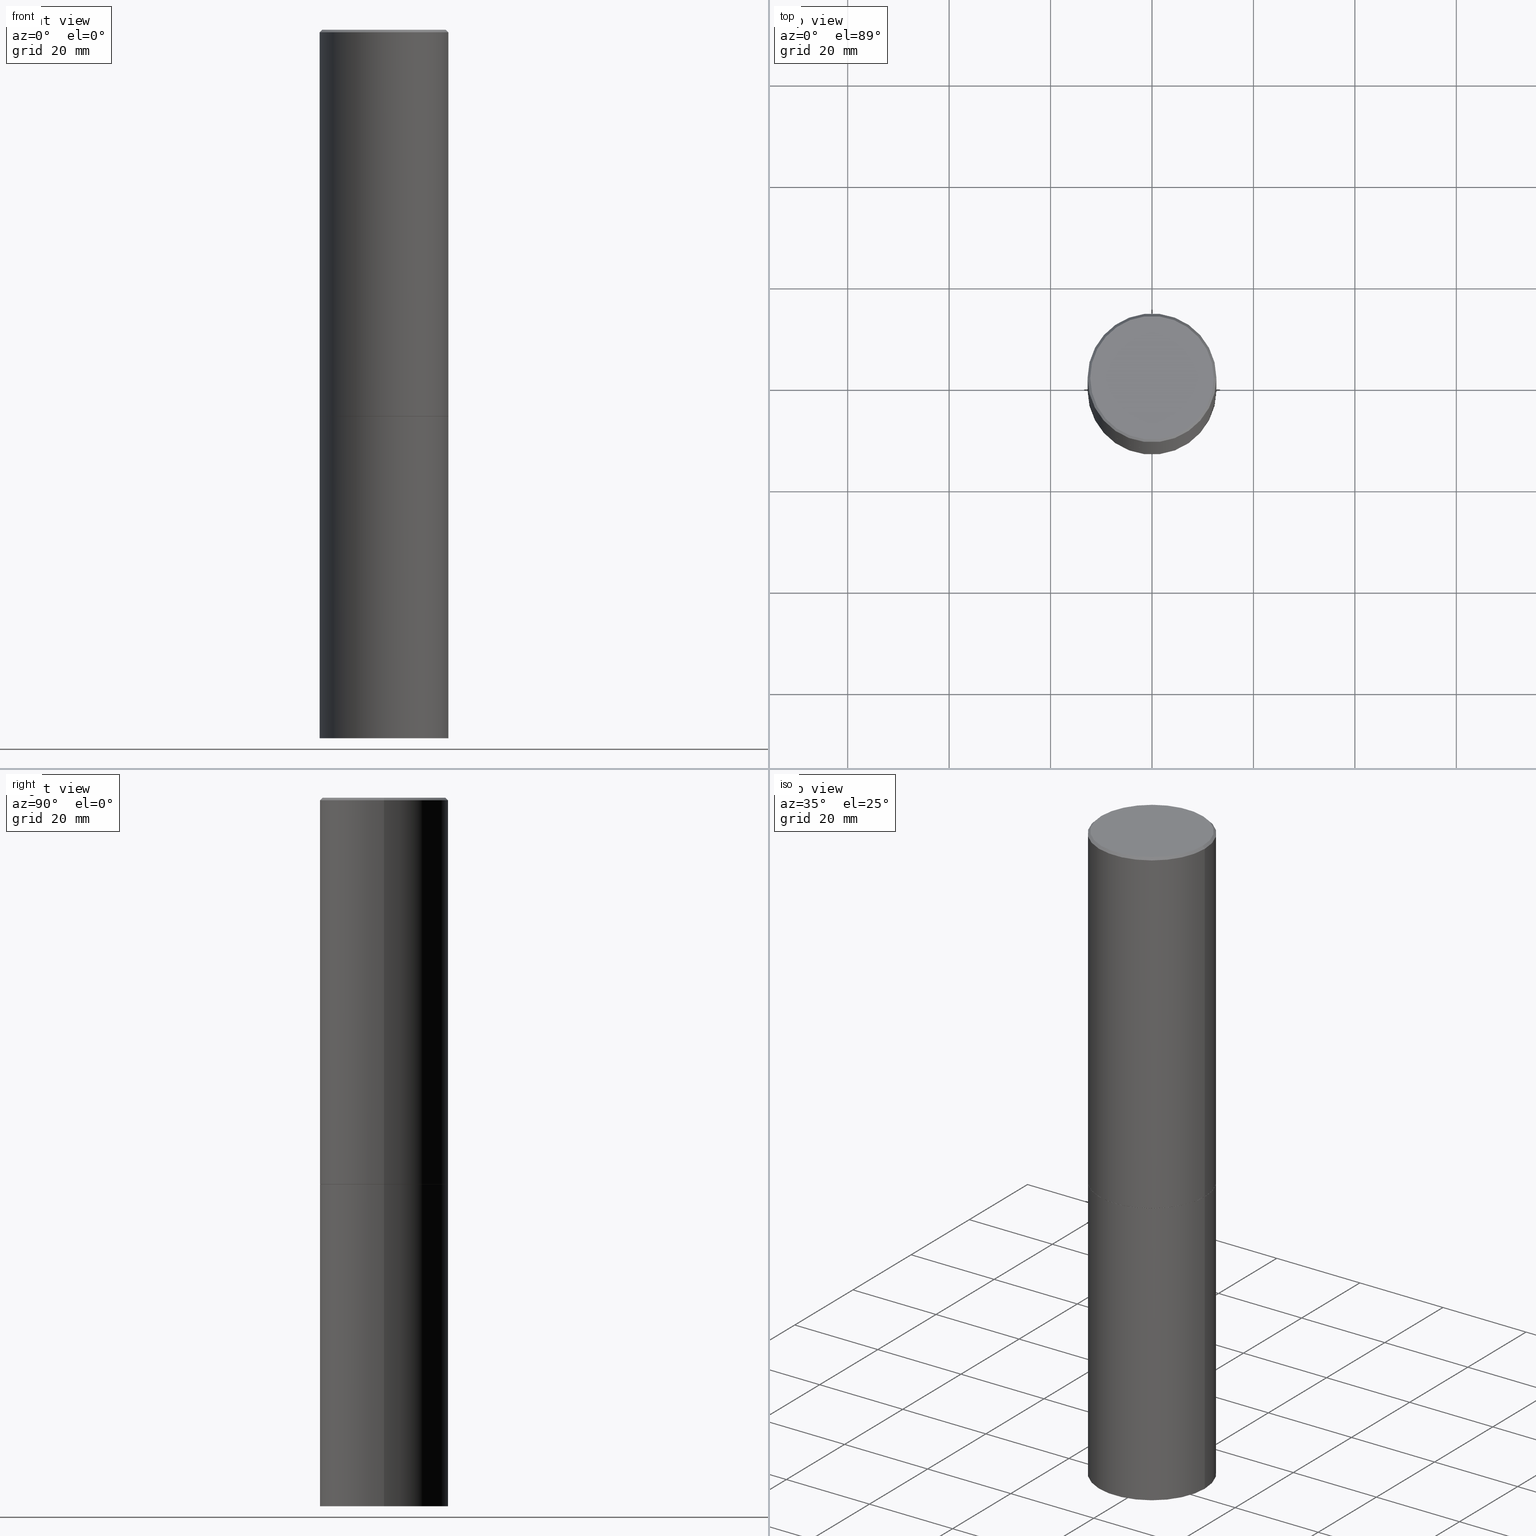
[diagram: canonical four-view strip — front | top / right | iso, engineering-drawing reading convention]
A machine part, canonical four-view strip (front | top / right | iso — engineering-drawing reading convention). The complete STEP part file that produces these views, byte-faithful:
ISO-10303-21;
HEADER;
FILE_DESCRIPTION (( 'STEP AP203' ),
    '1' );
FILE_NAME ('77295.STEP',
    '2024-02-29T18:25:06',
    ( '' ),
    ( '' ),
    'SwSTEP 2.0',
    'SolidWorks 2023',
    '' );
FILE_SCHEMA (( 'CONFIG_CONTROL_DESIGN' ));
ENDSEC;

DATA;
#1 = DIRECTION ( 'NONE',  ( 1.000000000000000000, -6.982962677686267499E-15, 4.876176775795936353E-29 ) ) ;
#2 = FACE_OUTER_BOUND ( 'NONE', #155, .T. ) ;
#3 = AXIS2_PLACEMENT_3D ( 'NONE', #91, #116, #208 ) ;
#4 = EDGE_CURVE ( 'NONE', #325, #177, #262, .T. ) ;
#5 = CARTESIAN_POINT ( 'NONE',  ( 3.491481338843206325E-15, 0.4999999999999895639, -3.000000000000001332 ) ) ;
#6 = ORIENTED_EDGE ( 'NONE', *, *, #265, .T. ) ;
#7 = CARTESIAN_POINT ( 'NONE',  ( 1.345007843401824904E-28, -1.920314736363729972E-14, -5.500000000000000000 ) ) ;
#8 = DIRECTION ( 'NONE',  ( -1.000000000000000000, 6.982962677686265922E-15, -4.876176775795935793E-29 ) ) ;
#9 = AXIS2_PLACEMENT_3D ( 'NONE', #260, #320, #10 ) ;
#10 = DIRECTION ( 'NONE',  ( 1.000000000000000000, -6.982962677686266711E-15, 4.876176775795935793E-29 ) ) ;
#11 = ORIENTED_EDGE ( 'NONE', *, *, #360, .T. ) ;
#12 = VERTEX_POINT ( 'NONE', #270 ) ;
#13 = EDGE_LOOP ( 'NONE', ( #241, #298, #129, #20 ) ) ;
#14 = CC_DESIGN_APPROVAL ( #86, ( #169 ) ) ;
#15 = CARTESIAN_POINT ( 'NONE',  ( 1.345007843401824904E-28, -1.920314736363729972E-14, -5.500000000000000000 ) ) ;
#16 = APPLICATION_PROTOCOL_DEFINITION ( 'international standard', 'config_control_design', 1994, #266 ) ;
#17 = VERTEX_POINT ( 'NONE', #273 ) ;
#18 = DATE_AND_TIME ( #271, #66 ) ;
#19 = ORIENTED_EDGE ( 'NONE', *, *, #230, .T. ) ;
#20 = ORIENTED_EDGE ( 'NONE', *, *, #305, .F. ) ;
#21 = AXIS2_PLACEMENT_3D ( 'NONE', #49, #193, #85 ) ;
#22 = CARTESIAN_POINT ( 'NONE',  ( 0.5000000000000000000, -2.269462870248043307E-14, -5.500000000000000000 ) ) ;
#23 = FACE_OUTER_BOUND ( 'NONE', #127, .T. ) ;
#24 = DIRECTION ( 'NONE',  ( -2.445468806185136597E-29, 3.491481338843145583E-15, 1.000000000000000000 ) ) ;
#25 = AXIS2_PLACEMENT_3D ( 'NONE', #345, #206, #179 ) ;
#26 = CYLINDRICAL_SURFACE ( 'NONE', #164, 0.5000000000000000000 ) ;
#27 = DIRECTION ( 'NONE',  ( -2.445468806185136597E-29, 3.491481338843145583E-15, 1.000000000000000000 ) ) ;
#28 = ORIENTED_EDGE ( 'NONE', *, *, #329, .F. ) ;
#29 = AXIS2_PLACEMENT_3D ( 'NONE', #364, #362, #225 ) ;
#30 = EDGE_CURVE ( 'NONE', #184, #130, #200, .T. ) ;
#31 = AXIS2_PLACEMENT_3D ( 'NONE', #309, #53, #170 ) ;
#32 = FACE_OUTER_BOUND ( 'NONE', #63, .T. ) ;
#33 = ORIENTED_EDGE ( 'NONE', *, *, #278, .F. ) ;
#34 = ORIENTED_EDGE ( 'NONE', *, *, #265, .F. ) ;
#35 = APPLICATION_PROTOCOL_DEFINITION ( 'international standard', 'config_control_design', 1994, #285 ) ;
#36 = FACE_OUTER_BOUND ( 'NONE', #76, .T. ) ;
#37 = EDGE_LOOP ( 'NONE', ( #150, #178 ) ) ;
#38 = PERSON_AND_ORGANIZATION ( #198, #333 ) ;
#39 = MECHANICAL_CONTEXT ( 'NONE', #285, 'mechanical' ) ;
#40 = ORIENTED_EDGE ( 'NONE', *, *, #226, .F. ) ;
#41 = CIRCLE ( 'NONE', #151, 0.5000000000000000000 ) ;
#42 = APPROVAL_STATUS ( 'not_yet_approved' ) ;
#43 = DIRECTION ( 'NONE',  ( 1.000000000000000000, -6.982962677686262766E-15, 0.000000000000000000 ) ) ;
#44 = CALENDAR_DATE ( 2024, 29, 2 ) ;
#45 = CARTESIAN_POINT ( 'NONE',  ( 7.336406418555408669E-29, -1.047444401652943478E-14, -2.999999999999999556 ) ) ;
#46 = APPROVAL_STATUS ( 'not_yet_approved' ) ;
#47 = ORIENTED_EDGE ( 'NONE', *, *, #207, .F. ) ;
#48 = ADVANCED_FACE ( 'NONE', ( #355 ), #79, .T. ) ;
#49 = CARTESIAN_POINT ( 'NONE',  ( 3.491481338843267462E-15, 0.4999999999999807931, -5.500000000000001776 ) ) ;
#50 = CC_DESIGN_APPROVAL ( #161, ( #107 ) ) ;
#51 = CARTESIAN_POINT ( 'NONE',  ( 0.4799999999999996492, -3.396558832296480127E-15, 1.280553747032483033E-17 ) ) ;
#52 = DIRECTION ( 'NONE',  ( 1.000000000000000000, -6.982962677686266711E-15, 0.000000000000000000 ) ) ;
#53 = DIRECTION ( 'NONE',  ( 2.438088387897960049E-29, -3.491481338843145188E-15, -1.000000000000000000 ) ) ;
#54 = AXIS2_PLACEMENT_3D ( 'NONE', #7, #62, #61 ) ;
#55 = ORIENTED_EDGE ( 'NONE', *, *, #305, .T. ) ;
#56 = DIRECTION ( 'NONE',  ( -2.445468806185136877E-29, 3.491481338843145188E-15, 1.000000000000000000 ) ) ;
#57 = FACE_OUTER_BOUND ( 'NONE', #356, .T. ) ;
#58 = PLANE ( 'NONE',  #158 ) ;
#59 = CIRCLE ( 'NONE', #328, 0.4799999999999996492 ) ;
#60 = CIRCLE ( 'NONE', #244, 0.4999999999999997224 ) ;
#61 = DIRECTION ( 'NONE',  ( 1.000000000000000000, -6.982962677686262766E-15, 0.000000000000000000 ) ) ;
#62 = DIRECTION ( 'NONE',  ( -2.445468806185136597E-29, 3.491481338843145583E-15, 1.000000000000000000 ) ) ;
#63 = EDGE_LOOP ( 'NONE', ( #124, #11, #92, #162 ) ) ;
#64 = LENGTH_MEASURE_WITH_UNIT ( LENGTH_MEASURE( 0.02539999999999999897 ), #205 );
#65 = AXIS2_PLACEMENT_3D ( 'NONE', #277, #24, #52 ) ;
#66 = LOCAL_TIME ( 13, 25, 6.000000000000000000, #185 ) ;
#67 = PERSON_AND_ORGANIZATION ( #198, #333 ) ;
#68 = DIRECTION ( 'NONE',  ( -2.445468806185136877E-29, 3.491481338843145188E-15, 1.000000000000000000 ) ) ;
#69 = ADVANCED_FACE ( 'NONE', ( #359 ), #103, .T. ) ;
#70 = CALENDAR_DATE ( 2024, 29, 2 ) ;
#71 = ORIENTED_EDGE ( 'NONE', *, *, #82, .F. ) ;
#72 = PERSON_AND_ORGANIZATION_ROLE ( 'classification_officer' ) ;
#73 = ORIENTED_EDGE ( 'NONE', *, *, #278, .T. ) ;
#74 = LOCAL_TIME ( 13, 25, 6.000000000000000000, #209 ) ;
#75 = DIRECTION ( 'NONE',  ( 2.445468806185136597E-29, -3.491481338843145583E-15, -1.000000000000000000 ) ) ;
#76 = EDGE_LOOP ( 'NONE', ( #160, #55 ) ) ;
#77 = PRODUCT_RELATED_PRODUCT_CATEGORY ( 'detail', '', ( #190 ) ) ;
#78 = CYLINDRICAL_SURFACE ( 'NONE', #289, 0.4999999999999998335 ) ;
#79 = CONICAL_SURFACE ( 'NONE', #321, 0.4999999999999997224, 0.7853981633974463916 ) ;
#80 = CARTESIAN_POINT ( 'NONE',  ( -0.4999999999999997224, 3.421651712066268085E-15, -0.02000000000000012879 ) ) ;
#81 = AXIS2_PLACEMENT_3D ( 'NONE', #87, #203, #149 ) ;
#82 = EDGE_CURVE ( 'NONE', #288, #130, #249, .T. ) ;
#83 = CARTESIAN_POINT ( 'NONE',  ( 0.000000000000000000, 0.000000000000000000, 0.000000000000000000 ) ) ;
#84 = FACE_OUTER_BOUND ( 'NONE', #37, .T. ) ;
#85 = DIRECTION ( 'NONE',  ( -1.000000000000000000, 6.982962677686265922E-15, -4.876176775795935793E-29 ) ) ;
#86 = APPROVAL ( #353, 'UNSPECIFIED' ) ;
#87 = CARTESIAN_POINT ( 'NONE',  ( 7.336406418555408669E-29, -1.047444401652943478E-14, -2.999999999999999556 ) ) ;
#88 = CYLINDRICAL_SURFACE ( 'NONE', #9, 0.5000000000000000000 ) ;
#89 = VECTOR ( 'NONE', #120, 39.37007874015748143 ) ;
#90 = DIRECTION ( 'NONE',  ( 1.000000000000000000, -6.982962677686266711E-15, 0.000000000000000000 ) ) ;
#91 = CARTESIAN_POINT ( 'NONE',  ( 7.336406418555408669E-29, -1.047444401652943478E-14, -2.999999999999999556 ) ) ;
#92 = ORIENTED_EDGE ( 'NONE', *, *, #319, .T. ) ;
#93 = ADVANCED_FACE ( 'NONE', ( #229 ), #310, .T. ) ;
#94 = DIRECTION ( 'NONE',  ( 0.000000000000000000, 0.000000000000000000, 1.000000000000000000 ) ) ;
#95 = VERTEX_POINT ( 'NONE', #304 ) ;
#96 = AXIS2_PLACEMENT_3D ( 'NONE', #45, #323, #275 ) ;
#97 = VECTOR ( 'NONE', #56, 39.37007874015748143 ) ;
#98 = PERSON_AND_ORGANIZATION ( #198, #333 ) ;
#99 = ORIENTED_EDGE ( 'NONE', *, *, #30, .F. ) ;
#100 = APPROVAL_DATE_TIME ( #322, #239 ) ;
#101 = SHAPE_DEFINITION_REPRESENTATION ( #358, #348 ) ;
#102 = ORIENTED_EDGE ( 'NONE', *, *, #297, .T. ) ;
#103 = CONICAL_SURFACE ( 'NONE', #96, 0.4989999999999999991, 0.7853981633978239785 ) ;
#104 = LOCAL_TIME ( 13, 25, 6.000000000000000000, #156 ) ;
#105 = DATE_AND_TIME ( #248, #254 ) ;
#106 = CARTESIAN_POINT ( 'NONE',  ( -0.4999999999999998335, 3.552713678800499746E-15, -2.459467545127452330E-29 ) ) ;
#107 = PRODUCT_DEFINITION ( 'UNKNOWN', '', #341, #235 ) ;
#108 = PLANE ( 'NONE',  #21 ) ;
#109 = DIRECTION ( 'NONE',  ( 1.000000000000000000, -6.982962677686267499E-15, 4.876176775795936353E-29 ) ) ;
#110 = DIRECTION ( 'NONE',  ( 1.000000000000000000, -6.982962677686267499E-15, 4.876036955247132767E-29 ) ) ;
#111 = CARTESIAN_POINT ( 'NONE',  ( 0.4999999999999997224, -3.500078625662627502E-15, -0.02000000000000012879 ) ) ;
#112 = DIRECTION ( 'NONE',  ( -2.445468806185136877E-29, 3.491481338843145188E-15, 1.000000000000000000 ) ) ;
#113 = CARTESIAN_POINT ( 'NONE',  ( 0.4989999999999999991, -1.395894239269488369E-14, -2.999999999999999556 ) ) ;
#114 = DIRECTION ( 'NONE',  ( 1.000000000000000000, -6.982962677686265922E-15, 4.876176775795935793E-29 ) ) ;
#115 = ORIENTED_EDGE ( 'NONE', *, *, #268, .F. ) ;
#116 = DIRECTION ( 'NONE',  ( -2.445468806185136597E-29, 3.491481338843145583E-15, 1.000000000000000000 ) ) ;
#117 = MANIFOLD_SOLID_BREP ( 'Body-Move/Copy2[2]', #174 ) ;
#118 = DIRECTION ( 'NONE',  ( 1.000000000000000000, -6.982962677686266711E-15, 0.000000000000000000 ) ) ;
#119 = AXIS2_PLACEMENT_3D ( 'NONE', #253, #361, #286 ) ;
#120 = DIRECTION ( 'NONE',  ( -2.445468806185136877E-29, 3.491481338843145188E-15, 1.000000000000000000 ) ) ;
#121 = ADVANCED_FACE ( 'NONE', ( #167 ), #222, .T. ) ;
#122 = MANIFOLD_SOLID_BREP ( 'Body-Move/Copy2[1]', #168 ) ;
#123 = PERSON_AND_ORGANIZATION ( #198, #333 ) ;
#124 = ORIENTED_EDGE ( 'NONE', *, *, #230, .F. ) ;
#125 = PERSON_AND_ORGANIZATION_ROLE ( 'design_supplier' ) ;
#126 = APPROVAL_DATE_TIME ( #105, #161 ) ;
#127 = EDGE_LOOP ( 'NONE', ( #73, #351, #99, #34 ) ) ;
#128 = PERSON_AND_ORGANIZATION_ROLE ( 'creator' ) ;
#129 = ORIENTED_EDGE ( 'NONE', *, *, #268, .T. ) ;
#130 = VERTEX_POINT ( 'NONE', #80 ) ;
#131 = CC_DESIGN_PERSON_AND_ORGANIZATION_ASSIGNMENT ( #326, #72, ( #169 ) ) ;
#132 = CIRCLE ( 'NONE', #54, 0.5000000000000000000 ) ;
#133 = DIRECTION ( 'NONE',  ( -2.445468806185136597E-29, 3.491481338843145583E-15, 1.000000000000000000 ) ) ;
#134 = CARTESIAN_POINT ( 'NONE',  ( -3.131554243005659264E-46, 4.471029511141341874E-32, 1.280553747030123384E-17 ) ) ;
#135 = VERTEX_POINT ( 'NONE', #51 ) ;
#136 = CC_DESIGN_PERSON_AND_ORGANIZATION_ASSIGNMENT ( #245, #128, ( #107 ) ) ;
#137 = CARTESIAN_POINT ( 'NONE',  ( -0.4799999999999996492, 3.386736898677836830E-15, 1.280553747027767124E-17 ) ) ;
#138 = CIRCLE ( 'NONE', #350, 0.4799999999999996492 ) ;
#139 = DIRECTION ( 'NONE',  ( 1.000000000000000000, -6.982962677686267499E-15, 4.876036955247132767E-29 ) ) ;
#140 = FACE_OUTER_BOUND ( 'NONE', #13, .T. ) ;
#141 = EDGE_CURVE ( 'NONE', #288, #17, #294, .T. ) ;
#142 = DIRECTION ( 'NONE',  ( 1.000000000000000000, -6.982962677686266711E-15, 4.876176775795935793E-29 ) ) ;
#143 = CARTESIAN_POINT ( 'NONE',  ( -0.4989999999999999991, -6.923537310738314819E-15, -2.999999999999999556 ) ) ;
#144 = ORIENTED_EDGE ( 'NONE', *, *, #141, .T. ) ;
#145 = ADVANCED_FACE ( 'NONE', ( #140 ), #26, .T. ) ;
#146 = CARTESIAN_POINT ( 'NONE',  ( 4.890937612370304688E-31, -6.982962677686335982E-17, -0.02000000000000012879 ) ) ;
#147 = CARTESIAN_POINT ( 'NONE',  ( 0.5000000000000000000, -1.396592535537256813E-14, -2.999999999999999556 ) ) ;
#148 = ORIENTED_EDGE ( 'NONE', *, *, #30, .T. ) ;
#149 = DIRECTION ( 'NONE',  ( 1.000000000000000000, -6.982962677686266711E-15, 0.000000000000000000 ) ) ;
#150 = ORIENTED_EDGE ( 'NONE', *, *, #228, .T. ) ;
#151 = AXIS2_PLACEMENT_3D ( 'NONE', #171, #27, #263 ) ;
#152 = DIRECTION ( 'NONE',  ( 2.438088387897960049E-29, -3.491481338843145188E-15, -1.000000000000000000 ) ) ;
#153 = CC_DESIGN_DATE_AND_TIME_ASSIGNMENT ( #154, #181, ( #107 ) ) ;
#154 = DATE_AND_TIME ( #70, #180 ) ;
#155 = EDGE_LOOP ( 'NONE', ( #366, #272, #28, #115 ) ) ;
#156 = COORDINATED_UNIVERSAL_TIME_OFFSET ( 5, 0, .BEHIND. ) ;
#157 = EDGE_LOOP ( 'NONE', ( #71, #144, #6, #250 ) ) ;
#158 = AXIS2_PLACEMENT_3D ( 'NONE', #175, #287, #114 ) ;
#159 = APPROVAL_ROLE ( '' ) ;
#160 = ORIENTED_EDGE ( 'NONE', *, *, #329, .T. ) ;
#161 = APPROVAL ( #42, 'UNSPECIFIED' ) ;
#162 = ORIENTED_EDGE ( 'NONE', *, *, #141, .F. ) ;
#163 = ORIENTED_EDGE ( 'NONE', *, *, #228, .F. ) ;
#164 = AXIS2_PLACEMENT_3D ( 'NONE', #166, #195, #142 ) ;
#165 = DIRECTION ( 'NONE',  ( 0.7071067811865461294, -7.319954787623251312E-15, -0.7071067811865489050 ) ) ;
#166 = CARTESIAN_POINT ( 'NONE',  ( 0.000000000000000000, 0.000000000000000000, 0.000000000000000000 ) ) ;
#167 = FACE_OUTER_BOUND ( 'NONE', #157, .T. ) ;
#168 = CLOSED_SHELL ( 'NONE', ( #284, #214, #315, #145 ) ) ;
#169 = SECURITY_CLASSIFICATION ( '', '', #274 ) ;
#170 = DIRECTION ( 'NONE',  ( -1.000000000000000000, 6.982962677686265922E-15, -4.876176775795935793E-29 ) ) ;
#171 = CARTESIAN_POINT ( 'NONE',  ( 7.333960949749226429E-29, -1.047095253519059492E-14, -2.999000000000000554 ) ) ;
#172 = DIRECTION ( 'NONE',  ( -2.445468806185136597E-29, 3.491481338843145583E-15, 1.000000000000000000 ) ) ;
#173 = ADVANCED_FACE ( 'NONE', ( #23 ), #78, .T. ) ;
#174 = CLOSED_SHELL ( 'NONE', ( #69, #173, #93, #48, #121, #365, #332, #252 ) ) ;
#175 = CARTESIAN_POINT ( 'NONE',  ( 7.336406418555408669E-29, -1.047444401652943478E-14, -2.999999999999999556 ) ) ;
#176 = CIRCLE ( 'NONE', #258, 0.5000000000000000000 ) ;
#177 = VERTEX_POINT ( 'NONE', #22 ) ;
#178 = ORIENTED_EDGE ( 'NONE', *, *, #204, .T. ) ;
#179 = DIRECTION ( 'NONE',  ( 1.000000000000000000, -6.982962677686269077E-15, 0.000000000000000000 ) ) ;
#180 = LOCAL_TIME ( 13, 25, 6.000000000000000000, #212 ) ;
#181 = DATE_TIME_ROLE ( 'creation_date' ) ;
#182 = ORIENTED_EDGE ( 'NONE', *, *, #4, .F. ) ;
#183 = DIRECTION ( 'NONE',  ( 1.000000000000000000, 0.000000000000000000, 0.000000000000000000 ) ) ;
#184 = VERTEX_POINT ( 'NONE', #111 ) ;
#185 = COORDINATED_UNIVERSAL_TIME_OFFSET ( 5, 0, .BEHIND. ) ;
#186 = EDGE_LOOP ( 'NONE', ( #40, #163, #318, #102 ) ) ;
#187 = CC_DESIGN_APPROVAL ( #239, ( #341 ) ) ;
#188 = CC_DESIGN_PERSON_AND_ORGANIZATION_ASSIGNMENT ( #67, #125, ( #341 ) ) ;
#189 = DIRECTION ( 'NONE',  ( -1.000000000000000000, 6.982962677686266711E-15, 0.000000000000000000 ) ) ;
#190 = PRODUCT ( '77295', '77295', '', ( #39 ) ) ;
#191 = DATE_TIME_ROLE ( 'classification_date' ) ;
#192 = ORIENTED_EDGE ( 'NONE', *, *, #194, .F. ) ;
#193 = DIRECTION ( 'NONE',  ( 2.438088387897960049E-29, -3.491481338843145188E-15, -1.000000000000000000 ) ) ;
#194 = EDGE_CURVE ( 'NONE', #12, #301, #306, .T. ) ;
#195 = DIRECTION ( 'NONE',  ( -2.445468806185136597E-29, 3.491481338843145583E-15, 1.000000000000000000 ) ) ;
#196 = DIRECTION ( 'NONE',  ( -0.7071067811865461294, 2.468850131082242072E-15, -0.7071067811865489050 ) ) ;
#197 = LINE ( 'NONE', #336, #282 ) ;
#198 = PERSON ( 'UNSPECIFIED', 'UNSPECIFIED', 'UNSPECIFIED', ('UNSPECIFIED'), ('UNSPECIFIED'), ('UNSPECIFIED') ) ;
#199 = CC_DESIGN_PERSON_AND_ORGANIZATION_ASSIGNMENT ( #296, #269, ( #341 ) ) ;
#200 = CIRCLE ( 'NONE', #236, 0.4999999999999997224 ) ;
#201 = VECTOR ( 'NONE', #165, 39.37007874015748143 ) ;
#202 = LINE ( 'NONE', #255, #201 ) ;
#203 = DIRECTION ( 'NONE',  ( -2.445468806185136597E-29, 3.491481338843145583E-15, 1.000000000000000000 ) ) ;
#204 = EDGE_CURVE ( 'NONE', #135, #213, #138, .T. ) ;
#205 =( LENGTH_UNIT ( ) NAMED_UNIT ( * ) SI_UNIT ( $, .METRE. ) );
#206 = DIRECTION ( 'NONE',  ( -2.445468806185136597E-29, 3.491481338843145583E-15, 1.000000000000000000 ) ) ;
#207 = EDGE_CURVE ( 'NONE', #213, #130, #197, .T. ) ;
#208 = DIRECTION ( 'NONE',  ( 1.000000000000000000, -6.982962677686269077E-15, 0.000000000000000000 ) ) ;
#209 = COORDINATED_UNIVERSAL_TIME_OFFSET ( 5, 0, .BEHIND. ) ;
#210 = ORIENTED_EDGE ( 'NONE', *, *, #204, .F. ) ;
#211 = CC_DESIGN_SECURITY_CLASSIFICATION ( #169, ( #341 ) ) ;
#212 = COORDINATED_UNIVERSAL_TIME_OFFSET ( 5, 0, .BEHIND. ) ;
#213 = VERTEX_POINT ( 'NONE', #137 ) ;
#214 = ADVANCED_FACE ( 'NONE', ( #251 ), #108, .T. ) ;
#215 = ORIENTED_EDGE ( 'NONE', *, *, #319, .F. ) ;
#216 = COORDINATED_UNIVERSAL_TIME_OFFSET ( 5, 0, .BEHIND. ) ;
#217 = CARTESIAN_POINT ( 'NONE',  ( 4.890937612370304688E-31, -6.982962677686335982E-17, -0.02000000000000012879 ) ) ;
#218 = APPROVAL_PERSON_ORGANIZATION ( #38, #161, #159 ) ;
#219 = DIRECTION ( 'NONE',  ( 1.000000000000000000, -6.982962677686266711E-15, 0.000000000000000000 ) ) ;
#220 = CC_DESIGN_PERSON_AND_ORGANIZATION_ASSIGNMENT ( #354, #240, ( #190 ) ) ;
#221 = LINE ( 'NONE', #283, #300 ) ;
#222 = CYLINDRICAL_SURFACE ( 'NONE', #243, 0.4999999999999998335 ) ;
#223 = CIRCLE ( 'NONE', #81, 0.5000000000000000000 ) ;
#224 = VECTOR ( 'NONE', #335, 39.37007874015748854 ) ;
#225 = DIRECTION ( 'NONE',  ( -1.000000000000000000, 6.982962677686266711E-15, 0.000000000000000000 ) ) ;
#226 = EDGE_CURVE ( 'NONE', #135, #184, #202, .T. ) ;
#227 = DIRECTION ( 'NONE',  ( -2.445468806185136597E-29, 3.491481338843145583E-15, 1.000000000000000000 ) ) ;
#228 = EDGE_CURVE ( 'NONE', #213, #135, #59, .T. ) ;
#229 = FACE_OUTER_BOUND ( 'NONE', #259, .T. ) ;
#230 = EDGE_CURVE ( 'NONE', #301, #288, #334, .T. ) ;
#231 = VECTOR ( 'NONE', #313, 39.37007874015748854 ) ;
#232 = CARTESIAN_POINT ( 'NONE',  ( 7.336406418555408669E-29, -1.047444401652943478E-14, -2.999999999999999556 ) ) ;
#233 = ORIENTED_EDGE ( 'NONE', *, *, #226, .T. ) ;
#234 =( NAMED_UNIT ( * ) PLANE_ANGLE_UNIT ( ) SI_UNIT ( $, .RADIAN. ) );
#235 = DESIGN_CONTEXT ( 'detailed design', #266, 'design' ) ;
#236 = AXIS2_PLACEMENT_3D ( 'NONE', #217, #133, #219 ) ;
#237 = AXIS2_PLACEMENT_3D ( 'NONE', #5, #152, #8 ) ;
#238 = CARTESIAN_POINT ( 'NONE',  ( -0.5000000000000000000, -1.128608201128286632E-14, -5.500000000000000000 ) ) ;
#239 = APPROVAL ( #46, 'UNSPECIFIED' ) ;
#240 = PERSON_AND_ORGANIZATION_ROLE ( 'design_owner' ) ;
#241 = ORIENTED_EDGE ( 'NONE', *, *, #339, .F. ) ;
#242 = CALENDAR_DATE ( 2024, 29, 2 ) ;
#243 = AXIS2_PLACEMENT_3D ( 'NONE', #331, #280, #109 ) ;
#244 = AXIS2_PLACEMENT_3D ( 'NONE', #146, #340, #90 ) ;
#245 = PERSON_AND_ORGANIZATION ( #198, #333 ) ;
#246 = ORIENTED_EDGE ( 'NONE', *, *, #360, .F. ) ;
#247 = CARTESIAN_POINT ( 'NONE',  ( 0.000000000000000000, 0.000000000000000000, 0.000000000000000000 ) ) ;
#248 = CALENDAR_DATE ( 2024, 29, 2 ) ;
#249 = LINE ( 'NONE', #106, #281 ) ;
#250 = ORIENTED_EDGE ( 'NONE', *, *, #297, .F. ) ;
#251 = FACE_OUTER_BOUND ( 'NONE', #267, .T. ) ;
#252 = ADVANCED_FACE ( 'NONE', ( #84 ), #257, .F. ) ;
#253 = CARTESIAN_POINT ( 'NONE',  ( 7.336406418555408669E-29, -1.047444401652943478E-14, -2.999999999999999556 ) ) ;
#254 = LOCAL_TIME ( 13, 25, 6.000000000000000000, #216 ) ;
#255 = CARTESIAN_POINT ( 'NONE',  ( 0.4999999999999997224, -3.500078625662627502E-15, -0.02000000000000012879 ) ) ;
#256 = DIRECTION ( 'NONE',  ( -2.445468806185136597E-29, 3.491481338843145583E-15, 1.000000000000000000 ) ) ;
#257 = PLANE ( 'NONE',  #31 ) ;
#258 = AXIS2_PLACEMENT_3D ( 'NONE', #232, #172, #118 ) ;
#259 = EDGE_LOOP ( 'NONE', ( #210, #233, #148, #47 ) ) ;
#260 = CARTESIAN_POINT ( 'NONE',  ( 0.000000000000000000, 0.000000000000000000, 0.000000000000000000 ) ) ;
#261 = UNCERTAINTY_MEASURE_WITH_UNIT (LENGTH_MEASURE( 1.000000000000000082E-05 ), #338, 'distance_accuracy_value', 'NONE');
#262 = CIRCLE ( 'NONE', #363, 0.5000000000000000000 ) ;
#263 = DIRECTION ( 'NONE',  ( 1.000000000000000000, -6.982962677686266711E-15, 0.000000000000000000 ) ) ;
#264 =( GEOMETRIC_REPRESENTATION_CONTEXT ( 3 ) GLOBAL_UNCERTAINTY_ASSIGNED_CONTEXT ( ( #261 ) ) GLOBAL_UNIT_ASSIGNED_CONTEXT ( ( #338, #234, #292 ) ) REPRESENTATION_CONTEXT ( 'NONE', 'WORKASPACE' ) );
#265 = EDGE_CURVE ( 'NONE', #17, #184, #221, .T. ) ;
#266 = APPLICATION_CONTEXT ( 'configuration controlled 3d designs of mechanical parts and assemblies' ) ;
#267 = EDGE_LOOP ( 'NONE', ( #276, #182 ) ) ;
#268 = EDGE_CURVE ( 'NONE', #177, #303, #330, .T. ) ;
#269 = PERSON_AND_ORGANIZATION_ROLE ( 'creator' ) ;
#270 = CARTESIAN_POINT ( 'NONE',  ( 0.4989999999999999991, -1.395894239269488369E-14, -2.999999999999999556 ) ) ;
#271 = CALENDAR_DATE ( 2024, 29, 2 ) ;
#272 = ORIENTED_EDGE ( 'NONE', *, *, #339, .T. ) ;
#273 = CARTESIAN_POINT ( 'NONE',  ( 0.5000000000000000000, -1.396243387403372828E-14, -2.999000000000000554 ) ) ;
#274 = SECURITY_CLASSIFICATION_LEVEL ( 'unclassified' ) ;
#275 = DIRECTION ( 'NONE',  ( 1.000000000000000000, -6.982962677686269077E-15, 0.000000000000000000 ) ) ;
#276 = ORIENTED_EDGE ( 'NONE', *, *, #344, .F. ) ;
#277 = CARTESIAN_POINT ( 'NONE',  ( 7.333960949749226429E-29, -1.047095253519059492E-14, -2.999000000000000554 ) ) ;
#278 = EDGE_CURVE ( 'NONE', #17, #288, #41, .T. ) ;
#279 = DIRECTION ( 'NONE',  ( -2.445468806185136597E-29, 3.491481338843145583E-15, 1.000000000000000000 ) ) ;
#280 = DIRECTION ( 'NONE',  ( -2.445468806185136597E-29, 3.491481338843145583E-15, 1.000000000000000000 ) ) ;
#281 = VECTOR ( 'NONE', #68, 39.37007874015748143 ) ;
#282 = VECTOR ( 'NONE', #196, 39.37007874015748143 ) ;
#283 = CARTESIAN_POINT ( 'NONE',  ( 0.4999999999999998335, -3.491481338843132566E-15, 2.438088387897967336E-29 ) ) ;
#284 = ADVANCED_FACE ( 'NONE', ( #2 ), #88, .T. ) ;
#285 = APPLICATION_CONTEXT ( 'configuration controlled 3d designs of mechanical parts and assemblies' ) ;
#286 = DIRECTION ( 'NONE',  ( 1.000000000000000000, -6.982962677686269077E-15, 0.000000000000000000 ) ) ;
#287 = DIRECTION ( 'NONE',  ( -2.438088387897960049E-29, 3.491481338843145188E-15, 1.000000000000000000 ) ) ;
#288 = VERTEX_POINT ( 'NONE', #337 ) ;
#289 = AXIS2_PLACEMENT_3D ( 'NONE', #83, #256, #1 ) ;
#290 = AXIS2_PLACEMENT_3D ( 'NONE', #247, #94, #183 ) ;
#291 = LINE ( 'NONE', #113, #231 ) ;
#292 =( NAMED_UNIT ( * ) SI_UNIT ( $, .STERADIAN. ) SOLID_ANGLE_UNIT ( ) );
#293 = ORIENTED_EDGE ( 'NONE', *, *, #194, .T. ) ;
#294 = CIRCLE ( 'NONE', #65, 0.5000000000000000000 ) ;
#295 = APPROVAL_PERSON_ORGANIZATION ( #123, #239, #347 ) ;
#296 = PERSON_AND_ORGANIZATION ( #198, #333 ) ;
#297 = EDGE_CURVE ( 'NONE', #130, #184, #60, .T. ) ;
#298 = ORIENTED_EDGE ( 'NONE', *, *, #4, .T. ) ;
#299 = DIRECTION ( 'NONE',  ( -2.445468806185136597E-29, 3.491481338843145583E-15, 1.000000000000000000 ) ) ;
#300 = VECTOR ( 'NONE', #112, 39.37007874015748143 ) ;
#301 = VERTEX_POINT ( 'NONE', #143 ) ;
#302 = APPROVAL_ROLE ( '' ) ;
#303 = VERTEX_POINT ( 'NONE', #147 ) ;
#304 = CARTESIAN_POINT ( 'NONE',  ( -0.5000000000000000000, -1.128608201128286632E-14, -2.999999999999999556 ) ) ;
#305 = EDGE_CURVE ( 'NONE', #95, #303, #223, .T. ) ;
#306 = CIRCLE ( 'NONE', #119, 0.4989999999999999991 ) ;
#307 = CARTESIAN_POINT ( 'NONE',  ( -3.131554243005659264E-46, 4.471029511141341874E-32, 1.280553747030123384E-17 ) ) ;
#308 = CARTESIAN_POINT ( 'NONE',  ( -0.4989999999999999991, -6.928835765086534855E-15, -2.999999999999999556 ) ) ;
#309 = CARTESIAN_POINT ( 'NONE',  ( 3.351822085289405181E-15, 0.4799999999999996492, -1.669508273909558064E-15 ) ) ;
#310 = CONICAL_SURFACE ( 'NONE', #29, 0.4999999999999997224, 0.7853981633974463916 ) ;
#311 = APPROVAL_PERSON_ORGANIZATION ( #98, #86, #302 ) ;
#312 = CARTESIAN_POINT ( 'NONE',  ( 0.5000000000000000000, -3.491481338843133355E-15, 2.438088387897967896E-29 ) ) ;
#313 = DIRECTION ( 'NONE',  ( 0.7071067811868130271, -2.468850131085038979E-15, 0.7071067811862817853 ) ) ;
#314 = PLANE ( 'NONE',  #237 ) ;
#315 = ADVANCED_FACE ( 'NONE', ( #36 ), #314, .F. ) ;
#316 = CIRCLE ( 'NONE', #25, 0.4989999999999999991 ) ;
#317 = LINE ( 'NONE', #342, #89 ) ;
#318 = ORIENTED_EDGE ( 'NONE', *, *, #207, .T. ) ;
#319 = EDGE_CURVE ( 'NONE', #12, #17, #291, .T. ) ;
#320 = DIRECTION ( 'NONE',  ( -2.445468806185136597E-29, 3.491481338843145583E-15, 1.000000000000000000 ) ) ;
#321 = AXIS2_PLACEMENT_3D ( 'NONE', #327, #75, #189 ) ;
#322 = DATE_AND_TIME ( #44, #74 ) ;
#323 = DIRECTION ( 'NONE',  ( -2.445468806185136597E-29, 3.491481338843145583E-15, 1.000000000000000000 ) ) ;
#324 = APPROVAL_DATE_TIME ( #18, #86 ) ;
#325 = VERTEX_POINT ( 'NONE', #238 ) ;
#326 = PERSON_AND_ORGANIZATION ( #198, #333 ) ;
#327 = CARTESIAN_POINT ( 'NONE',  ( 4.890937612370304688E-31, -6.982962677686335982E-17, -0.02000000000000012879 ) ) ;
#328 = AXIS2_PLACEMENT_3D ( 'NONE', #307, #227, #110 ) ;
#329 = EDGE_CURVE ( 'NONE', #303, #95, #176, .T. ) ;
#330 = LINE ( 'NONE', #312, #97 ) ;
#331 = CARTESIAN_POINT ( 'NONE',  ( 0.000000000000000000, 0.000000000000000000, 0.000000000000000000 ) ) ;
#332 = ADVANCED_FACE ( 'NONE', ( #57 ), #58, .F. ) ;
#333 = ORGANIZATION ( 'UNSPECIFIED', 'UNSPECIFIED', '' ) ;
#334 = LINE ( 'NONE', #308, #224 ) ;
#335 = DIRECTION ( 'NONE',  ( -0.7071067811868130271, 7.493145998871311837E-15, 0.7071067811862817853 ) ) ;
#336 = CARTESIAN_POINT ( 'NONE',  ( -0.4999999999999997224, 3.421651712066268085E-15, -0.02000000000000012879 ) ) ;
#337 = CARTESIAN_POINT ( 'NONE',  ( -0.5000000000000000000, -1.717677402183226998E-15, -2.999000000000000554 ) ) ;
#338 =( CONVERSION_BASED_UNIT ( 'INCH', #64 ) LENGTH_UNIT ( ) NAMED_UNIT ( #352 ) );
#339 = EDGE_CURVE ( 'NONE', #325, #95, #317, .T. ) ;
#340 = DIRECTION ( 'NONE',  ( -2.445468806185136597E-29, 3.491481338843145583E-15, 1.000000000000000000 ) ) ;
#341 = PRODUCT_DEFINITION_FORMATION_WITH_SPECIFIED_SOURCE ( 'ANY', '', #190, .NOT_KNOWN. ) ;
#342 = CARTESIAN_POINT ( 'NONE',  ( -0.5000000000000000000, 3.552713678800500929E-15, -2.459467545127452891E-29 ) ) ;
#343 = EDGE_LOOP ( 'NONE', ( #293, #19, #33, #215 ) ) ;
#344 = EDGE_CURVE ( 'NONE', #177, #325, #132, .T. ) ;
#345 = CARTESIAN_POINT ( 'NONE',  ( 7.336406418555408669E-29, -1.047444401652943478E-14, -2.999999999999999556 ) ) ;
#346 = CC_DESIGN_DATE_AND_TIME_ASSIGNMENT ( #349, #191, ( #169 ) ) ;
#347 = APPROVAL_ROLE ( '' ) ;
#348 = ADVANCED_BREP_SHAPE_REPRESENTATION ( '77295', ( #122, #117, #290 ), #264 ) ;
#349 = DATE_AND_TIME ( #242, #104 ) ;
#350 = AXIS2_PLACEMENT_3D ( 'NONE', #134, #279, #139 ) ;
#351 = ORIENTED_EDGE ( 'NONE', *, *, #82, .T. ) ;
#352 = DIMENSIONAL_EXPONENTS ( 1.000000000000000000, 0.000000000000000000, 0.000000000000000000, 0.000000000000000000, 0.000000000000000000, 0.000000000000000000, 0.000000000000000000 ) ;
#353 = APPROVAL_STATUS ( 'not_yet_approved' ) ;
#354 = PERSON_AND_ORGANIZATION ( #198, #333 ) ;
#355 = FACE_OUTER_BOUND ( 'NONE', #186, .T. ) ;
#356 = EDGE_LOOP ( 'NONE', ( #192, #246 ) ) ;
#357 = CONICAL_SURFACE ( 'NONE', #3, 0.4989999999999999991, 0.7853981633978239785 ) ;
#358 = PRODUCT_DEFINITION_SHAPE ( 'NONE', 'NONE',  #107 ) ;
#359 = FACE_OUTER_BOUND ( 'NONE', #343, .T. ) ;
#360 = EDGE_CURVE ( 'NONE', #301, #12, #316, .T. ) ;
#361 = DIRECTION ( 'NONE',  ( -2.445468806185136597E-29, 3.491481338843145583E-15, 1.000000000000000000 ) ) ;
#362 = DIRECTION ( 'NONE',  ( 2.445468806185136597E-29, -3.491481338843145583E-15, -1.000000000000000000 ) ) ;
#363 = AXIS2_PLACEMENT_3D ( 'NONE', #15, #299, #43 ) ;
#364 = CARTESIAN_POINT ( 'NONE',  ( 4.890937612370304688E-31, -6.982962677686335982E-17, -0.02000000000000012879 ) ) ;
#365 = ADVANCED_FACE ( 'NONE', ( #32 ), #357, .T. ) ;
#366 = ORIENTED_EDGE ( 'NONE', *, *, #344, .T. ) ;
ENDSEC;
END-ISO-10303-21;
